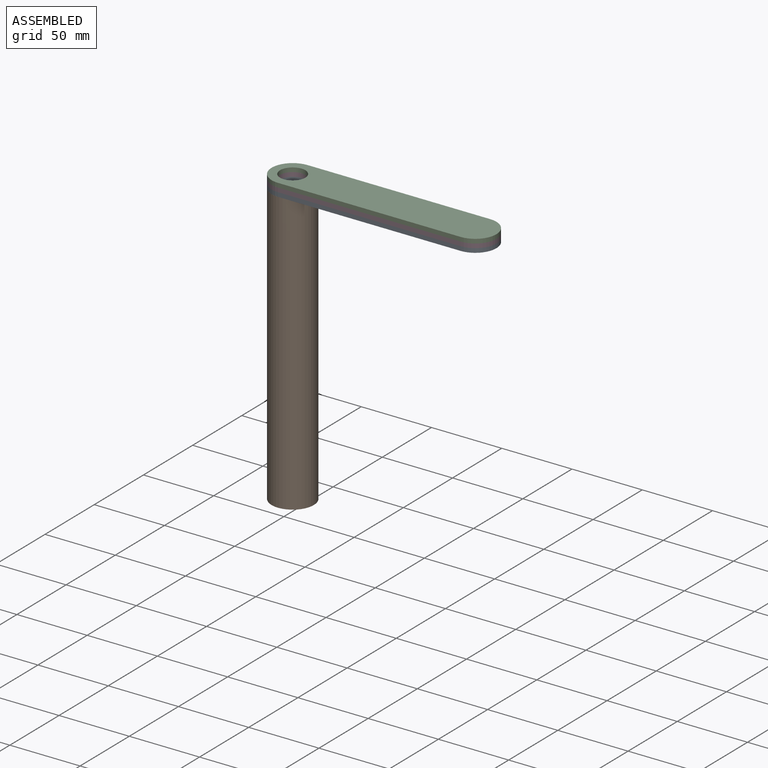
[diagram: assembled view]
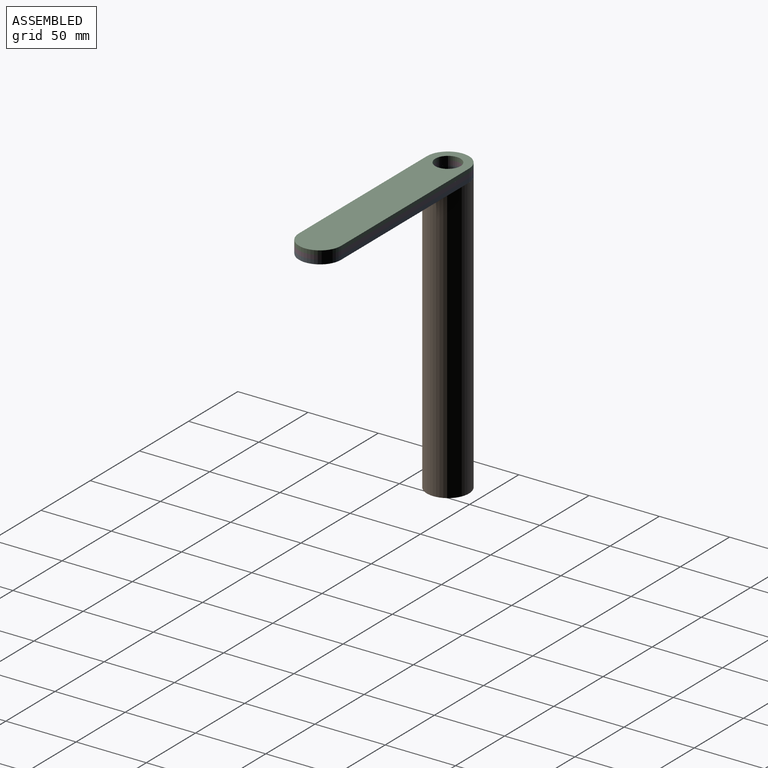
[diagram: assembled view, second angle]
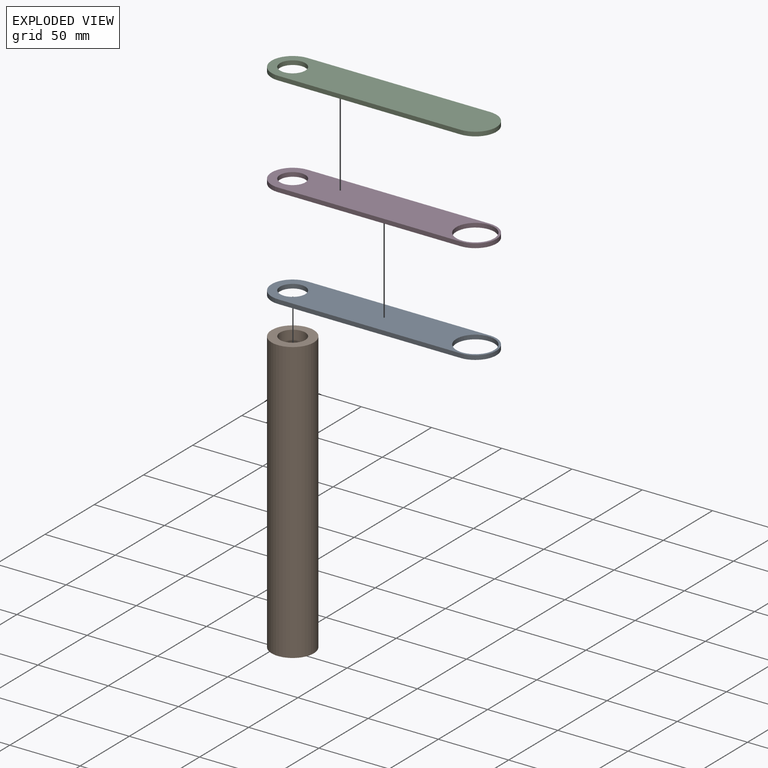
[diagram: exploded view]
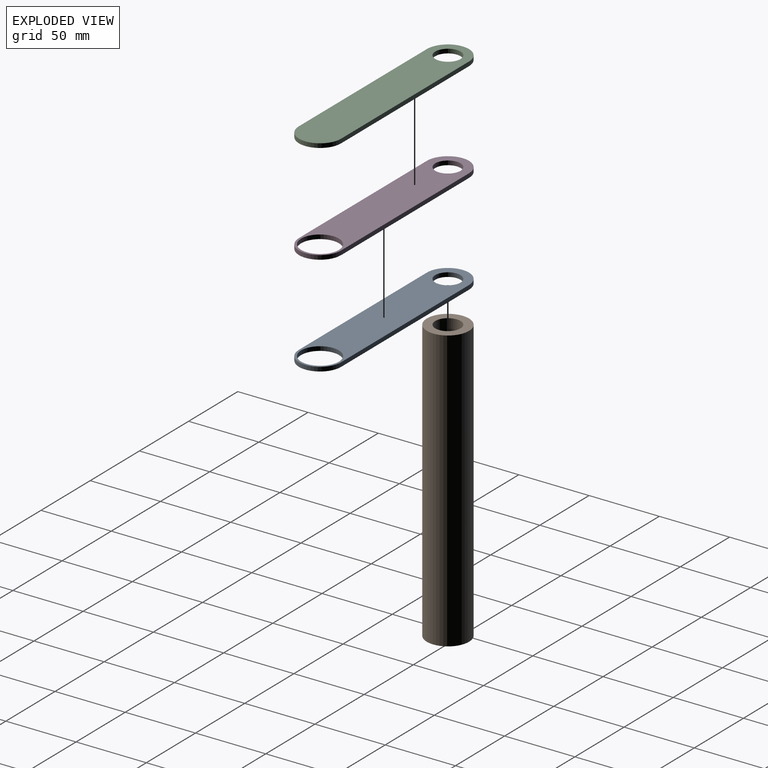
[diagram: exploded view, second angle]
ASSEMBLY  parts=4 mates=3
PART A: 8 faces, bbox 160x30x3 mm
  f0: plane 130x3mm, normal (0,1,0), area 390mm2, adj f1,f5,f6,f7
  f1: cylinder r=15mm len=30mm, axis (0,0,-1), area 141.4mm2, adj f0,f2,f6,f7
  f2: plane 130x3mm, normal (0,-1,0), area 390mm2, adj f1,f5,f6,f7
  f3: cylinder r=9mm len=18mm, axis (0,0,-1), area 169.6mm2, adj f6,f7
  f4: cylinder r=13.5mm len=27mm, axis (0,0,-1), area 254.5mm2, adj f6,f7
  f5: cylinder r=15mm len=30mm, axis (0,0,-1), area 141.4mm2, adj f0,f2,f6,f7
  f6: plane 160x30mm, normal (0,0,1), area 3779.8mm2, adj f0,f1,f2,f3,f4,f5
  f7: plane 160x30mm, normal (0,0,-1), area 3779.8mm2, adj f0,f1,f2,f3,f4,f5
PART B: 5 faces, bbox 30x30x200 mm
  f0: cylinder r=15mm len=200mm, axis (0,0,-1), area 18849.6mm2, adj f1,f2
  f1: plane 30x30mm, normal (0,0,1), area 452.4mm2, adj f0,f3
  f2: plane 30x30mm, normal (0,0,-1), area 706.9mm2, adj f0
  f3: cylinder r=9mm len=80mm, axis (0,0,1), area 4523.9mm2, adj f1,f4
  f4: plane 18x18mm, normal (0,0,1), area 254.5mm2, adj f3
PART C: 7 faces, bbox 160x30x3 mm
  f0: plane 130x3mm, normal (0,1,0), area 390mm2, adj f1,f4,f5,f6
  f1: cylinder r=15mm len=30mm, axis (0,0,-1), area 141.4mm2, adj f0,f2,f5,f6
  f2: plane 130x3mm, normal (0,-1,0), area 390mm2, adj f1,f4,f5,f6
  f3: cylinder r=9mm len=18mm, axis (0,0,-1), area 169.6mm2, adj f5,f6
  f4: cylinder r=15mm len=30mm, axis (0,0,-1), area 141.4mm2, adj f0,f2,f5,f6
  f5: plane 160x30mm, normal (0,0,1), area 4352.4mm2, adj f0,f1,f2,f3,f4
  f6: plane 160x30mm, normal (0,0,-1), area 4352.4mm2, adj f0,f1,f2,f3,f4
PART D: same geometry as A
PLACE A t=(-37.55,-66.64,-17.94)mm
PLACE B rot(axis=(0,0,1),7.4deg) t=(-37.55,-51.64,-217.94)mm
PLACE C t=(-37.55,-66.64,-11.94)mm
PLACE D t=(-37.55,-66.64,-14.94)mm
MATE revolute A.f3 <-> B.f3  axis (0,0,-1) through (-37.55,-51.64,-17.94)mm
MATE revolute C.f3 <-> D.f1  axis (0,0,-1) through (-37.55,-51.64,-11.94)mm
MATE revolute D.f1 <-> A.f3  axis (0,0,-1) through (-37.55,-51.64,-14.94)mm
